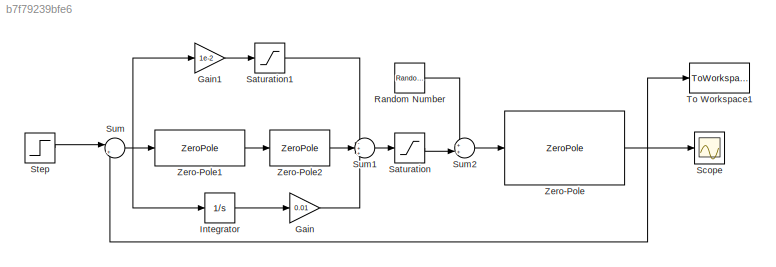
MODEL slx_b7f79239bfe6
KIND model
CONFIG AbsTol = auto
CONFIG EnableMultiTasking = off
CONFIG FixedStep = auto
CONFIG MaxStep = auto
CONFIG MinStep = auto
CONFIG RelTol = 1e-3
CONFIG SampleTimeConstraint = Unconstrained
CONFIG Solver = VariableStepAuto
CONFIG SolverName = VariableStepAuto
CONFIG StartTime = 0.0
CONFIG StopTime = 150
BLOCK [Gain] Gain
  Gain = 0.01
  OutDataTypeStr = Inherit: Inherit via internal rule
  ParamDataTypeStr = Inherit: Inherit via internal rule
  SaturateOnIntegerOverflow = off
BLOCK [Gain] Gain1
  Gain = 1e-2
  OutDataTypeStr = Inherit: Inherit via internal rule
  ParamDataTypeStr = Inherit: Inherit via internal rule
  SaturateOnIntegerOverflow = off
BLOCK [Integrator] Integrator
  Ports = [1, 1]
BLOCK [RandomNumber] Random Number
  Mean = pi/36
  SampleTime = 0.1
  Variance = pi/120
BLOCK [Saturate] Saturation
  InputPortMap = u0
  LowerLimit = -pi/6
  Ports = [1, 1]
  UpperLimit = pi/6
BLOCK [Saturate] Saturation1
  InputPortMap = u0
  LowerLimit = -pi/6
  Ports = [1, 1]
  UpperLimit = pi/6
BLOCK [Scope] Scope
  Floating = off
  NumInputPorts = 1
  Ports = [1]
  ScopeSpecificationString = Simulink.scopes.TimeScopeBlockCfg('CurrentConfiguration', extmgr.ConfigurationSet(extmgr.Configuration('Core','General UI',true),extmgr.Configuration('Core','Source UI',true),extmgr.Configuration('Sources','WiredSimulink',true),extmgr.Configuration('Visuals','Time Domain',true,'SerializedDisplays',{struct('MinYLimReal','-0.5813','MaxYLimReal','5.23171','YLabelReal','','MinYLimMag','0.00000','MaxYL...<+1378ch>
BLOCK [Step] Step
  After = 4
  SampleTime = 0
  Time = 10
BLOCK [Sum] Sum
  IconShape = round
  InputSameDT = off
  Inputs = |+-
  OutDataTypeStr = Inherit: Inherit via internal rule
  Ports = [2, 1]
  SaturateOnIntegerOverflow = off
BLOCK [Sum] Sum1
  IconShape = round
  InputSameDT = off
  Inputs = -++
  OutDataTypeStr = Inherit: Inherit via internal rule
  Ports = [3, 1]
  SaturateOnIntegerOverflow = off
BLOCK [Sum] Sum2
  IconShape = round
  InputSameDT = off
  Inputs = ++|
  OutDataTypeStr = Inherit: Inherit via internal rule
  Ports = [2, 1]
  SaturateOnIntegerOverflow = off
BLOCK [ToWorkspace] To Workspace1
  FixptAsFi = on
  MaxDataPoints = inf
  Ports = [1]
  SampleTime = -1
  Save2DSignal = 3-D array (concatenate along third dimension)
  SaveFormat = Timeseries
  VariableName = yfr
BLOCK [ZeroPole] Zero-Pole
  Gain = 1.5
  Poles = [0 0 -5/4]
  Zeros = []
BLOCK [ZeroPole] Zero-Pole1
  Gain = 55
  Poles = -16
  Zeros = -0.25
BLOCK [ZeroPole] Zero-Pole2
  Poles = [-3]
  Zeros = []
LINE Gain1:1 -> Saturation1:1
LINE Gain:1 -> Sum1:3
LINE Integrator:1 -> Gain:1
LINE Random Number:1 -> Sum2:1
LINE Saturation1:1 -> Sum1:1
LINE Saturation:1 -> Sum2:2
LINE Step:1 -> Sum:1
LINE Sum1:1 -> Saturation:1
LINE Sum2:1 -> Zero-Pole:1
NET Sum:1 -> Gain1:1, Integrator:1, Zero-Pole1:1
LINE Zero-Pole1:1 -> Zero-Pole2:1
LINE Zero-Pole2:1 -> Sum1:2
NET Zero-Pole:1 -> Scope:1, Sum:2, To Workspace1:1
note: NET lines group one-source signal fan-out (src -> all destinations, sorted); 1:1 wires keep LINE
